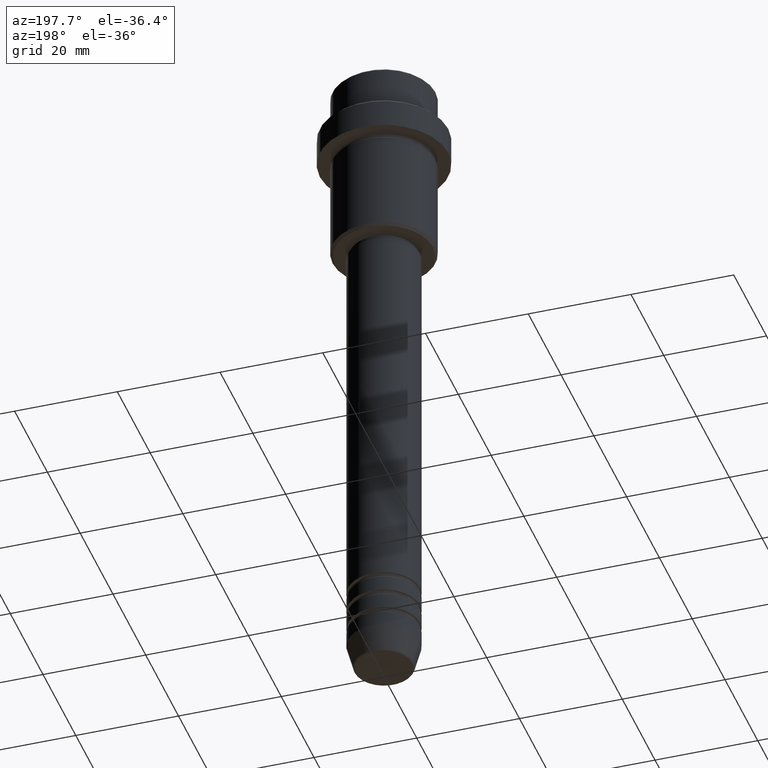
[diagram: clean part render]
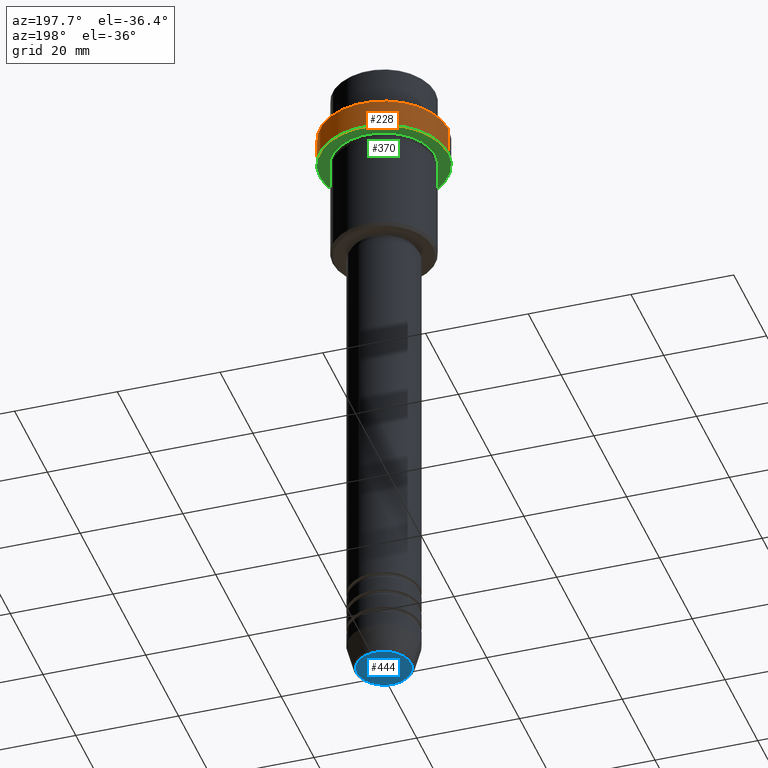
[diagram: same view with three faces highlighted in distinct colors, each labeled with its STEP entity id]
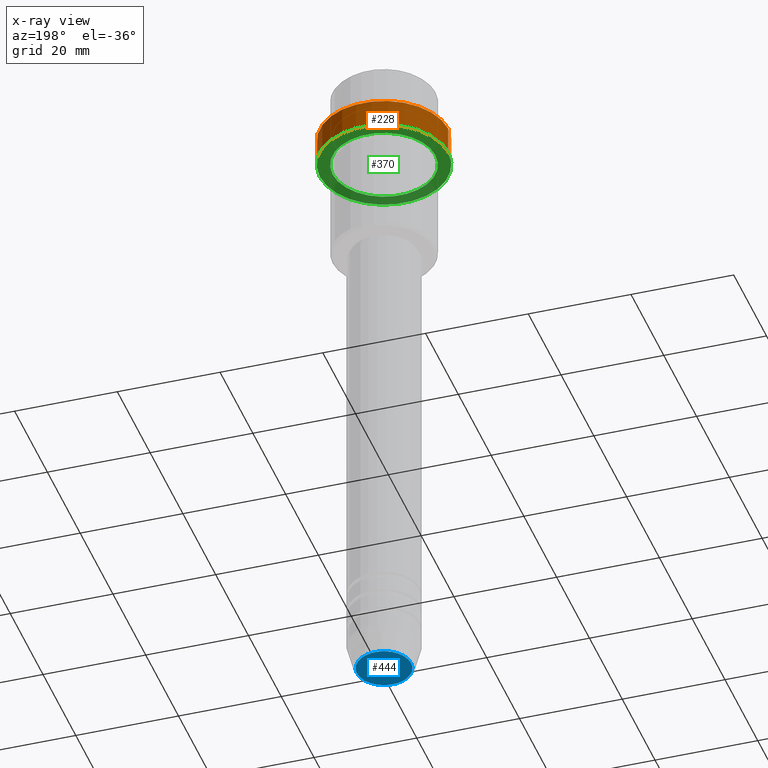
[diagram: x-ray of the same camera — body ghosted, the three highlighted faces saturated]
A machine part, auxiliary view with three faces highlighted in distinct colors.
The next image is the same camera in x-ray (body ghosted, the three faces saturated) — at least one of them is partly hidden behind the body in this view.
Their STEP definitions:

[orange] entity #228 — the highlighted cylindrical surface (partial cylindrical patch) has radius 12.5 mm, axis along (-0, -0, 1).
#9 = EDGE_CURVE ( 'NONE', #767, #706, #1036, .T. ) ;
#58 = EDGE_CURVE ( 'NONE', #1397, #132, #918, .T. ) ;
#63 = EDGE_CURVE ( 'NONE', #706, #1397, #695, .T. ) ;
#70 = DIRECTION ( 'NONE',  ( 0.000000000000000000, 0.000000000000000000, -1.000000000000000000 ) ) ;
#120 = DIRECTION ( 'NONE',  ( -0.000000000000000000, -0.000000000000000000, 1.000000000000000000 ) ) ;
#132 = VERTEX_POINT ( 'NONE', #1047 ) ;
#178 = DIRECTION ( 'NONE',  ( -0.000000000000000000, -0.000000000000000000, 1.000000000000000000 ) ) ;
#181 = DIRECTION ( 'NONE',  ( 1.000000000000000000, 0.000000000000000000, 0.000000000000000000 ) ) ;
#228 = ADVANCED_FACE ( 'NONE', ( #411 ), #427, .T. ) ;
#285 = CARTESIAN_POINT ( 'NONE',  ( -12.50000000000000000, 1.530808498934191521E-15, -9.499999999999992895 ) ) ;
#289 = ORIENTED_EDGE ( 'NONE', *, *, #988, .F. ) ;
#344 = AXIS2_PLACEMENT_3D ( 'NONE', #1103, #120, #560 ) ;
#348 = VECTOR ( 'NONE', #379, 1000.000000000000000 ) ;
#364 = CARTESIAN_POINT ( 'NONE',  ( 12.50000000000000000, 0.000000000000000000, 0.000000000000000000 ) ) ;
#379 = DIRECTION ( 'NONE',  ( -0.000000000000000000, -0.000000000000000000, 1.000000000000000000 ) ) ;
#411 = FACE_OUTER_BOUND ( 'NONE', #1082, .T. ) ;
#427 = CYLINDRICAL_SURFACE ( 'NONE', #463, 12.50000000000000000 ) ;
#439 = CARTESIAN_POINT ( 'NONE',  ( 12.50000000000000000, 0.000000000000000000, -15.00000000000000178 ) ) ;
#463 = AXIS2_PLACEMENT_3D ( 'NONE', #728, #1169, #181 ) ;
#483 = VECTOR ( 'NONE', #178, 1000.000000000000000 ) ;
#560 = DIRECTION ( 'NONE',  ( 1.000000000000000000, 0.000000000000000000, 0.000000000000000000 ) ) ;
#695 = LINE ( 'NONE', #1039, #483 ) ;
#706 = VERTEX_POINT ( 'NONE', #1056 ) ;
#728 = CARTESIAN_POINT ( 'NONE',  ( 0.000000000000000000, 0.000000000000000000, 0.000000000000000000 ) ) ;
#767 = VERTEX_POINT ( 'NONE', #439 ) ;
#910 = ORIENTED_EDGE ( 'NONE', *, *, #63, .T. ) ;
#918 = CIRCLE ( 'NONE', #1354, 12.50000000000000000 ) ;
#988 = EDGE_CURVE ( 'NONE', #767, #132, #1257, .T. ) ;
#1036 = CIRCLE ( 'NONE', #344, 12.50000000000000000 ) ;
#1039 = CARTESIAN_POINT ( 'NONE',  ( -12.50000000000000000, 1.530808498934191521E-15, 0.000000000000000000 ) ) ;
#1047 = CARTESIAN_POINT ( 'NONE',  ( 12.50000000000000000, 0.000000000000000000, -9.499999999999992895 ) ) ;
#1056 = CARTESIAN_POINT ( 'NONE',  ( -12.50000000000000000, 1.530808498934191521E-15, -15.00000000000000178 ) ) ;
#1082 = EDGE_LOOP ( 'NONE', ( #1306, #910, #1413, #289 ) ) ;
#1103 = CARTESIAN_POINT ( 'NONE',  ( 0.000000000000000000, 0.000000000000000000, -15.00000000000000178 ) ) ;
#1141 = DIRECTION ( 'NONE',  ( 1.000000000000000000, 0.000000000000000000, 0.000000000000000000 ) ) ;
#1146 = CARTESIAN_POINT ( 'NONE',  ( 0.000000000000000000, 0.000000000000000000, -9.499999999999992895 ) ) ;
#1169 = DIRECTION ( 'NONE',  ( -0.000000000000000000, -0.000000000000000000, 1.000000000000000000 ) ) ;
#1257 = LINE ( 'NONE', #364, #348 ) ;
#1306 = ORIENTED_EDGE ( 'NONE', *, *, #9, .T. ) ;
#1354 = AXIS2_PLACEMENT_3D ( 'NONE', #1146, #70, #1141 ) ;
#1397 = VERTEX_POINT ( 'NONE', #285 ) ;
#1413 = ORIENTED_EDGE ( 'NONE', *, *, #58, .T. ) ;

[blue] entity #444 — the highlighted planar face has unit normal (0, -0, 1).
#85 = DIRECTION ( 'NONE',  ( 1.000000000000000000, 0.000000000000000000, 0.000000000000000000 ) ) ;
#110 = DIRECTION ( 'NONE',  ( 0.000000000000000000, 0.000000000000000000, -1.000000000000000000 ) ) ;
#118 = CARTESIAN_POINT ( 'NONE',  ( 0.000000000000000000, 0.000000000000000000, -131.0000000000000000 ) ) ;
#208 = CARTESIAN_POINT ( 'NONE',  ( 0.000000000000000000, 0.000000000000000000, -131.0000000000000000 ) ) ;
#216 = CARTESIAN_POINT ( 'NONE',  ( 5.276590543854905668, 0.000000000000000000, -131.0000000000000000 ) ) ;
#217 = FACE_OUTER_BOUND ( 'NONE', #707, .T. ) ;
#304 = EDGE_CURVE ( 'NONE', #763, #841, #345, .T. ) ;
#345 = CIRCLE ( 'NONE', #1081, 5.276590543854905668 ) ;
#354 = DIRECTION ( 'NONE',  ( 0.000000000000000000, -0.000000000000000000, 1.000000000000000000 ) ) ;
#444 = ADVANCED_FACE ( 'NONE', ( #217 ), #665, .F. ) ;
#460 = CARTESIAN_POINT ( 'NONE',  ( 0.000000000000000000, 0.000000000000000000, -131.0000000000000000 ) ) ;
#464 = AXIS2_PLACEMENT_3D ( 'NONE', #460, #110, #1226 ) ;
#609 = ORIENTED_EDGE ( 'NONE', *, *, #757, .T. ) ;
#665 = PLANE ( 'NONE',  #1244 ) ;
#707 = EDGE_LOOP ( 'NONE', ( #609, #1011 ) ) ;
#757 = EDGE_CURVE ( 'NONE', #841, #763, #807, .T. ) ;
#763 = VERTEX_POINT ( 'NONE', #1212 ) ;
#807 = CIRCLE ( 'NONE', #464, 5.276590543854905668 ) ;
#841 = VERTEX_POINT ( 'NONE', #216 ) ;
#989 = DIRECTION ( 'NONE',  ( 1.000000000000000000, 0.000000000000000000, 0.000000000000000000 ) ) ;
#1011 = ORIENTED_EDGE ( 'NONE', *, *, #304, .T. ) ;
#1081 = AXIS2_PLACEMENT_3D ( 'NONE', #208, #1178, #85 ) ;
#1178 = DIRECTION ( 'NONE',  ( 0.000000000000000000, 0.000000000000000000, -1.000000000000000000 ) ) ;
#1212 = CARTESIAN_POINT ( 'NONE',  ( -5.276590543854905668, 6.757689212787771832E-16, -131.0000000000000000 ) ) ;
#1226 = DIRECTION ( 'NONE',  ( 1.000000000000000000, 0.000000000000000000, 0.000000000000000000 ) ) ;
#1244 = AXIS2_PLACEMENT_3D ( 'NONE', #118, #354, #989 ) ;

[green] entity #370 — the highlighted planar face has unit normal (0, 0, -1).
#9 = EDGE_CURVE ( 'NONE', #767, #706, #1036, .T. ) ;
#15 = DIRECTION ( 'NONE',  ( -1.000000000000000000, 0.000000000000000000, 0.000000000000000000 ) ) ;
#27 = DIRECTION ( 'NONE',  ( -1.000000000000000000, 0.000000000000000000, -0.000000000000000000 ) ) ;
#35 = ORIENTED_EDGE ( 'NONE', *, *, #398, .T. ) ;
#38 = EDGE_CURVE ( 'NONE', #706, #767, #1150, .T. ) ;
#39 = ORIENTED_EDGE ( 'NONE', *, *, #9, .F. ) ;
#120 = DIRECTION ( 'NONE',  ( -0.000000000000000000, -0.000000000000000000, 1.000000000000000000 ) ) ;
#139 = FACE_OUTER_BOUND ( 'NONE', #1233, .T. ) ;
#142 = AXIS2_PLACEMENT_3D ( 'NONE', #1207, #1005, #796 ) ;
#250 = AXIS2_PLACEMENT_3D ( 'NONE', #839, #592, #1052 ) ;
#302 = VERTEX_POINT ( 'NONE', #734 ) ;
#337 = CARTESIAN_POINT ( 'NONE',  ( 0.000000000000000000, 12.50000000000000000, -15.00000000000000000 ) ) ;
#344 = AXIS2_PLACEMENT_3D ( 'NONE', #1103, #120, #560 ) ;
#359 = CARTESIAN_POINT ( 'NONE',  ( -9.999999999999994671, 0.000000000000000000, -15.00000000000000000 ) ) ;
#370 = ADVANCED_FACE ( 'NONE', ( #1124, #139 ), #1308, .T. ) ;
#398 = EDGE_CURVE ( 'NONE', #548, #302, #1374, .T. ) ;
#430 = EDGE_LOOP ( 'NONE', ( #35, #474 ) ) ;
#439 = CARTESIAN_POINT ( 'NONE',  ( 12.50000000000000000, 0.000000000000000000, -15.00000000000000178 ) ) ;
#455 = DIRECTION ( 'NONE',  ( -0.000000000000000000, -0.000000000000000000, 1.000000000000000000 ) ) ;
#473 = EDGE_CURVE ( 'NONE', #302, #548, #671, .T. ) ;
#474 = ORIENTED_EDGE ( 'NONE', *, *, #473, .T. ) ;
#548 = VERTEX_POINT ( 'NONE', #359 ) ;
#560 = DIRECTION ( 'NONE',  ( 1.000000000000000000, 0.000000000000000000, 0.000000000000000000 ) ) ;
#592 = DIRECTION ( 'NONE',  ( -0.000000000000000000, -0.000000000000000000, 1.000000000000000000 ) ) ;
#671 = CIRCLE ( 'NONE', #942, 9.999999999999994671 ) ;
#706 = VERTEX_POINT ( 'NONE', #1056 ) ;
#734 = CARTESIAN_POINT ( 'NONE',  ( 9.999999999999994671, 1.224646799147352665E-15, -15.00000000000000000 ) ) ;
#766 = DIRECTION ( 'NONE',  ( 0.000000000000000000, 0.000000000000000000, -1.000000000000000000 ) ) ;
#767 = VERTEX_POINT ( 'NONE', #439 ) ;
#774 = CARTESIAN_POINT ( 'NONE',  ( 0.000000000000000000, 0.000000000000000000, -15.00000000000000000 ) ) ;
#796 = DIRECTION ( 'NONE',  ( -1.000000000000000000, 0.000000000000000000, 0.000000000000000000 ) ) ;
#839 = CARTESIAN_POINT ( 'NONE',  ( 0.000000000000000000, 0.000000000000000000, -15.00000000000000178 ) ) ;
#892 = ORIENTED_EDGE ( 'NONE', *, *, #38, .F. ) ;
#942 = AXIS2_PLACEMENT_3D ( 'NONE', #774, #455, #15 ) ;
#1005 = DIRECTION ( 'NONE',  ( -0.000000000000000000, -0.000000000000000000, 1.000000000000000000 ) ) ;
#1036 = CIRCLE ( 'NONE', #344, 12.50000000000000000 ) ;
#1052 = DIRECTION ( 'NONE',  ( 1.000000000000000000, 0.000000000000000000, 0.000000000000000000 ) ) ;
#1056 = CARTESIAN_POINT ( 'NONE',  ( -12.50000000000000000, 1.530808498934191521E-15, -15.00000000000000178 ) ) ;
#1058 = AXIS2_PLACEMENT_3D ( 'NONE', #337, #766, #27 ) ;
#1103 = CARTESIAN_POINT ( 'NONE',  ( 0.000000000000000000, 0.000000000000000000, -15.00000000000000178 ) ) ;
#1124 = FACE_BOUND ( 'NONE', #430, .T. ) ;
#1150 = CIRCLE ( 'NONE', #250, 12.50000000000000000 ) ;
#1207 = CARTESIAN_POINT ( 'NONE',  ( 0.000000000000000000, 0.000000000000000000, -15.00000000000000000 ) ) ;
#1233 = EDGE_LOOP ( 'NONE', ( #39, #892 ) ) ;
#1308 = PLANE ( 'NONE',  #1058 ) ;
#1374 = CIRCLE ( 'NONE', #142, 9.999999999999994671 ) ;